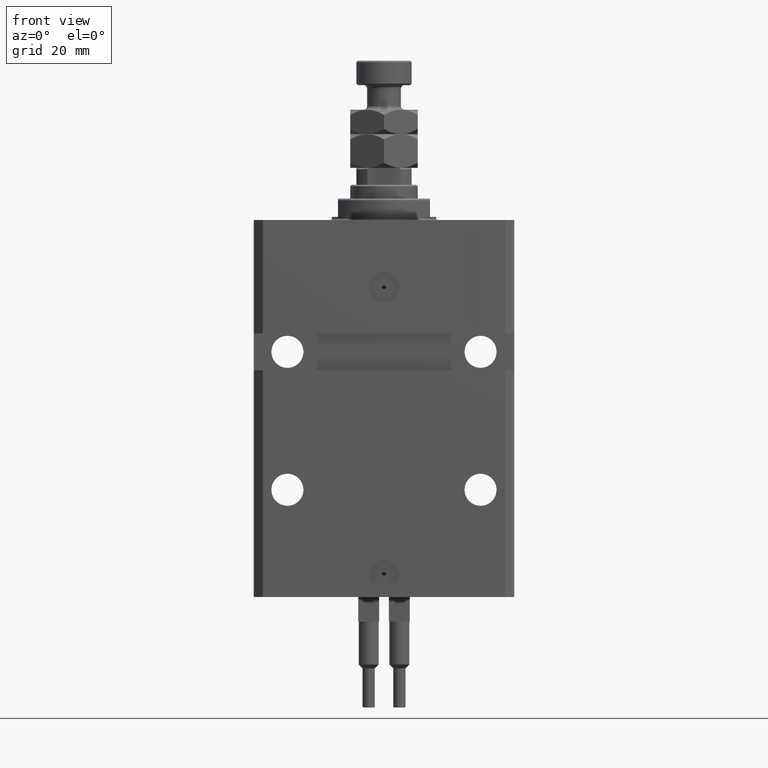
[diagram: clean part render]
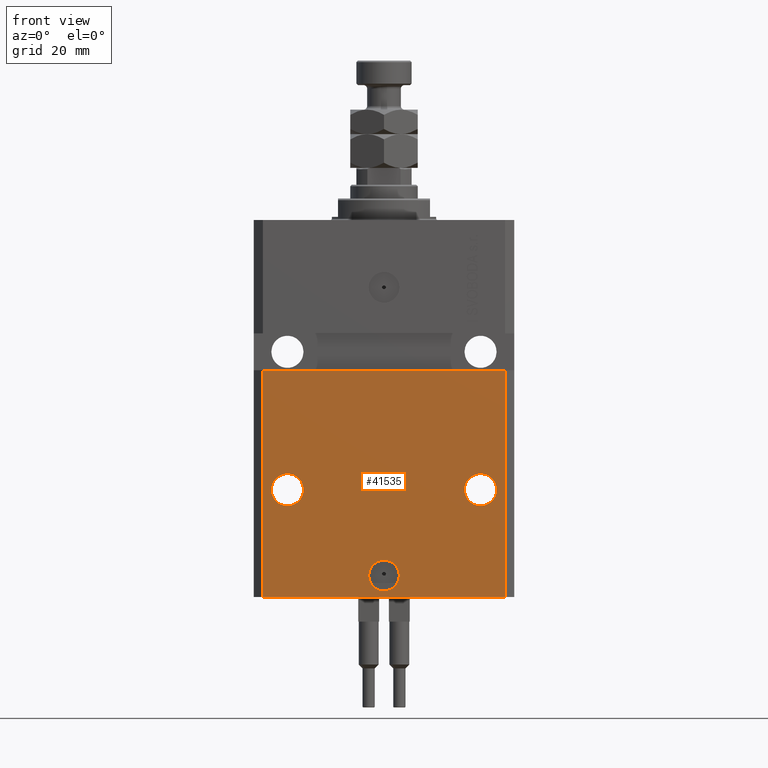
[diagram: same view with one face highlighted and labeled with its STEP entity id]
A machine part, front view. The second image highlights one B-rep face of the part: STEP entity #41535.
In plain terms, the highlighted planar face has unit normal (0, -1, 0).
Its self-contained STEP definition (entity closure, byte-faithful):
#303 = EDGE_CURVE ( 'NONE', #32433, #7849, #18200, .T. ) ;
#1561 = AXIS2_PLACEMENT_3D ( 'NONE', #10261, #42239, #37889 ) ;
#2933 = DIRECTION ( 'NONE',  ( 0.000000000000000000, 0.000000000000000000, 1.000000000000000000 ) ) ;
#3018 = FACE_BOUND ( 'NONE', #31544, .T. ) ;
#4078 = VERTEX_POINT ( 'NONE', #14610 ) ;
#4350 = AXIS2_PLACEMENT_3D ( 'NONE', #24209, #16302, #31904 ) ;
#4503 = ORIENTED_EDGE ( 'NONE', *, *, #7821, .F. ) ;
#4825 = CIRCLE ( 'NONE', #25244, 5.249999999999997335 ) ;
#5585 = CARTESIAN_POINT ( 'NONE',  ( -39.50000000000000711, -31.50000000000000000, -123.0000000000000000 ) ) ;
#6176 = DIRECTION ( 'NONE',  ( 1.000000000000000000, 0.000000000000000000, 0.000000000000000000 ) ) ;
#6867 = PLANE ( 'NONE',  #21548 ) ;
#7515 = EDGE_CURVE ( 'NONE', #32433, #27424, #34010, .T. ) ;
#7551 = VERTEX_POINT ( 'NONE', #45790 ) ;
#7636 = EDGE_CURVE ( 'NONE', #29363, #31941, #4825, .T. ) ;
#7821 = EDGE_CURVE ( 'NONE', #4078, #28955, #46518, .T. ) ;
#7849 = VERTEX_POINT ( 'NONE', #13998 ) ;
#8730 = VECTOR ( 'NONE', #2933, 1000.000000000000000 ) ;
#9666 = DIRECTION ( 'NONE',  ( 1.000000000000000000, 0.000000000000000000, 0.000000000000000000 ) ) ;
#10261 = CARTESIAN_POINT ( 'NONE',  ( 0.000000000000000000, -31.50000000000000000, -115.9999999999999858 ) ) ;
#10274 = DIRECTION ( 'NONE',  ( 1.176083712526788232E-16, -1.000000000000000000, 0.000000000000000000 ) ) ;
#10487 = CARTESIAN_POINT ( 'NONE',  ( -39.50000000000000711, -31.50000000000000000, -123.0000000000000000 ) ) ;
#10600 = AXIS2_PLACEMENT_3D ( 'NONE', #48906, #10274, #44566 ) ;
#10961 = FACE_BOUND ( 'NONE', #29220, .T. ) ;
#12657 = CARTESIAN_POINT ( 'NONE',  ( 39.50000000000001421, -31.49999999999999289, -48.99999999999997868 ) ) ;
#13235 = ORIENTED_EDGE ( 'NONE', *, *, #26135, .F. ) ;
#13745 = DIRECTION ( 'NONE',  ( 1.176083712526788232E-16, -1.000000000000000000, 0.000000000000000000 ) ) ;
#13808 = AXIS2_PLACEMENT_3D ( 'NONE', #29108, #13745, #9666 ) ;
#13949 = LINE ( 'NONE', #37991, #8730 ) ;
#13998 = CARTESIAN_POINT ( 'NONE',  ( 39.50000000000000711, -31.50000000000000000, -123.0000000000000000 ) ) ;
#14029 = FACE_BOUND ( 'NONE', #35303, .T. ) ;
#14610 = CARTESIAN_POINT ( 'NONE',  ( 36.75000000000001421, -31.49999999999999289, -88.00000000000000000 ) ) ;
#16302 = DIRECTION ( 'NONE',  ( 1.176083712526788232E-16, -1.000000000000000000, 0.000000000000000000 ) ) ;
#16808 = ORIENTED_EDGE ( 'NONE', *, *, #18374, .T. ) ;
#16828 = ORIENTED_EDGE ( 'NONE', *, *, #40546, .F. ) ;
#17619 = DIRECTION ( 'NONE',  ( 0.000000000000000000, -0.000000000000000000, -1.000000000000000000 ) ) ;
#18200 = LINE ( 'NONE', #36875, #40659 ) ;
#18374 = EDGE_CURVE ( 'NONE', #7849, #35399, #13949, .T. ) ;
#19600 = ORIENTED_EDGE ( 'NONE', *, *, #35023, .F. ) ;
#21548 = AXIS2_PLACEMENT_3D ( 'NONE', #25798, #30153, #17619 ) ;
#21665 = CARTESIAN_POINT ( 'NONE',  ( -39.50000000000000000, -31.50000000000000711, -48.99999999999999289 ) ) ;
#22528 = CARTESIAN_POINT ( 'NONE',  ( -26.25000000000001776, -31.50000000000000711, -88.00000000000000000 ) ) ;
#24004 = CARTESIAN_POINT ( 'NONE',  ( -31.50000000000001421, -31.50000000000000711, -88.00000000000000000 ) ) ;
#24209 = CARTESIAN_POINT ( 'NONE',  ( 0.000000000000000000, -31.50000000000000000, -115.9999999999999858 ) ) ;
#25244 = AXIS2_PLACEMENT_3D ( 'NONE', #24004, #31703, #27613 ) ;
#25798 = CARTESIAN_POINT ( 'NONE',  ( -39.50000000000000711, -31.50000000000000000, -123.0000000000000000 ) ) ;
#26135 = EDGE_CURVE ( 'NONE', #42564, #7551, #37508, .T. ) ;
#26295 = VECTOR ( 'NONE', #31188, 1000.000000000000000 ) ;
#26947 = EDGE_CURVE ( 'NONE', #31941, #29363, #46511, .T. ) ;
#27121 = ORIENTED_EDGE ( 'NONE', *, *, #7515, .F. ) ;
#27424 = VERTEX_POINT ( 'NONE', #21665 ) ;
#27613 = DIRECTION ( 'NONE',  ( -1.000000000000000000, 0.000000000000000000, 0.000000000000000000 ) ) ;
#27797 = ORIENTED_EDGE ( 'NONE', *, *, #26947, .F. ) ;
#28746 = CARTESIAN_POINT ( 'NONE',  ( 26.25000000000001776, -31.49999999999999289, -88.00000000000000000 ) ) ;
#28955 = VERTEX_POINT ( 'NONE', #28746 ) ;
#29108 = CARTESIAN_POINT ( 'NONE',  ( 31.50000000000001421, -31.49999999999999289, -88.00000000000000000 ) ) ;
#29220 = EDGE_LOOP ( 'NONE', ( #33949, #27797 ) ) ;
#29363 = VERTEX_POINT ( 'NONE', #22528 ) ;
#29649 = FACE_OUTER_BOUND ( 'NONE', #33380, .T. ) ;
#30153 = DIRECTION ( 'NONE',  ( 0.000000000000000000, -1.000000000000000000, 0.000000000000000000 ) ) ;
#30935 = LINE ( 'NONE', #42180, #26295 ) ;
#31188 = DIRECTION ( 'NONE',  ( 1.000000000000000000, 1.632680918566406300E-16, 1.632680918566406300E-16 ) ) ;
#31404 = DIRECTION ( 'NONE',  ( 1.176083712526788232E-16, -1.000000000000000000, 0.000000000000000000 ) ) ;
#31544 = EDGE_LOOP ( 'NONE', ( #4503, #33374 ) ) ;
#31703 = DIRECTION ( 'NONE',  ( 1.176083712526788232E-16, -1.000000000000000000, 0.000000000000000000 ) ) ;
#31904 = DIRECTION ( 'NONE',  ( 1.000000000000000000, 0.000000000000000000, 0.000000000000000000 ) ) ;
#31941 = VERTEX_POINT ( 'NONE', #44850 ) ;
#32433 = VERTEX_POINT ( 'NONE', #5585 ) ;
#32573 = EDGE_CURVE ( 'NONE', #28955, #4078, #48229, .T. ) ;
#32643 = DIRECTION ( 'NONE',  ( 1.000000000000000000, 0.000000000000000000, 0.000000000000000000 ) ) ;
#33374 = ORIENTED_EDGE ( 'NONE', *, *, #32573, .F. ) ;
#33380 = EDGE_LOOP ( 'NONE', ( #19600, #27121, #33433, #16808 ) ) ;
#33433 = ORIENTED_EDGE ( 'NONE', *, *, #303, .T. ) ;
#33949 = ORIENTED_EDGE ( 'NONE', *, *, #7636, .F. ) ;
#34010 = LINE ( 'NONE', #10487, #34223 ) ;
#34223 = VECTOR ( 'NONE', #34520, 1000.000000000000000 ) ;
#34520 = DIRECTION ( 'NONE',  ( 0.000000000000000000, 0.000000000000000000, 1.000000000000000000 ) ) ;
#34983 = CARTESIAN_POINT ( 'NONE',  ( 31.50000000000001421, -31.49999999999999289, -88.00000000000000000 ) ) ;
#35023 = EDGE_CURVE ( 'NONE', #27424, #35399, #30935, .T. ) ;
#35303 = EDGE_LOOP ( 'NONE', ( #13235, #16828 ) ) ;
#35399 = VERTEX_POINT ( 'NONE', #12657 ) ;
#36875 = CARTESIAN_POINT ( 'NONE',  ( -39.50000000000000711, -31.50000000000000000, -123.0000000000000000 ) ) ;
#37508 = CIRCLE ( 'NONE', #1561, 5.000000000000006217 ) ;
#37889 = DIRECTION ( 'NONE',  ( 1.000000000000000000, 0.000000000000000000, 0.000000000000000000 ) ) ;
#37991 = CARTESIAN_POINT ( 'NONE',  ( 39.50000000000000711, -31.50000000000000000, -123.0000000000000000 ) ) ;
#38432 = AXIS2_PLACEMENT_3D ( 'NONE', #34983, #31404, #32643 ) ;
#40546 = EDGE_CURVE ( 'NONE', #7551, #42564, #48448, .T. ) ;
#40659 = VECTOR ( 'NONE', #6176, 1000.000000000000000 ) ;
#41535 = ADVANCED_FACE ( 'NONE', ( #14029, #3018, #10961, #29649 ), #6867, .T. ) ;
#42180 = CARTESIAN_POINT ( 'NONE',  ( -42.50000000000000000, -31.50000000000000711, -48.99999999999999289 ) ) ;
#42239 = DIRECTION ( 'NONE',  ( 1.176083712526788232E-16, -1.000000000000000000, 0.000000000000000000 ) ) ;
#42564 = VERTEX_POINT ( 'NONE', #45830 ) ;
#44566 = DIRECTION ( 'NONE',  ( -1.000000000000000000, 0.000000000000000000, 0.000000000000000000 ) ) ;
#44850 = CARTESIAN_POINT ( 'NONE',  ( -36.75000000000001421, -31.50000000000000711, -88.00000000000000000 ) ) ;
#45790 = CARTESIAN_POINT ( 'NONE',  ( -5.000000000000006217, -31.50000000000000000, -115.9999999999999858 ) ) ;
#45830 = CARTESIAN_POINT ( 'NONE',  ( 5.000000000000006217, -31.50000000000000000, -115.9999999999999858 ) ) ;
#46511 = CIRCLE ( 'NONE', #10600, 5.249999999999997335 ) ;
#46518 = CIRCLE ( 'NONE', #13808, 5.249999999999997335 ) ;
#48229 = CIRCLE ( 'NONE', #38432, 5.249999999999997335 ) ;
#48448 = CIRCLE ( 'NONE', #4350, 5.000000000000006217 ) ;
#48906 = CARTESIAN_POINT ( 'NONE',  ( -31.50000000000001421, -31.50000000000000711, -88.00000000000000000 ) ) ;